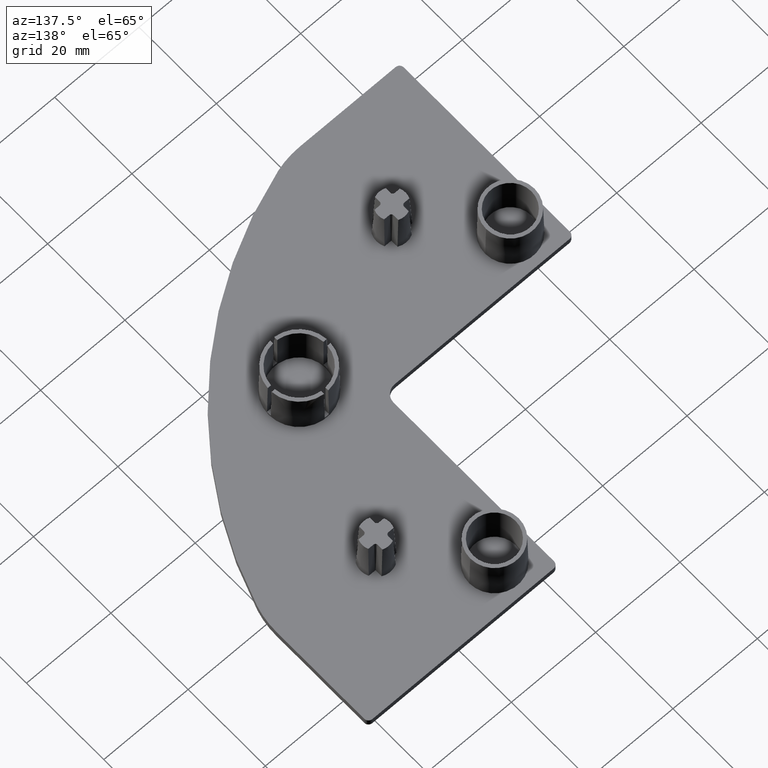
[diagram: clean part render]
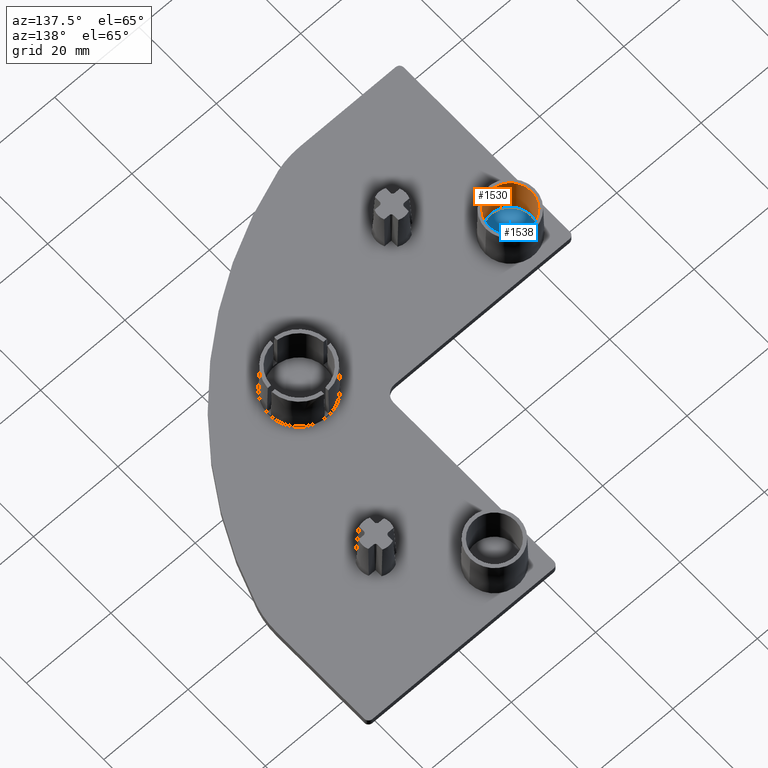
[diagram: same view with the hole feature highlighted: cylindrical wall and planar end face, labeled with their STEP entity ids]
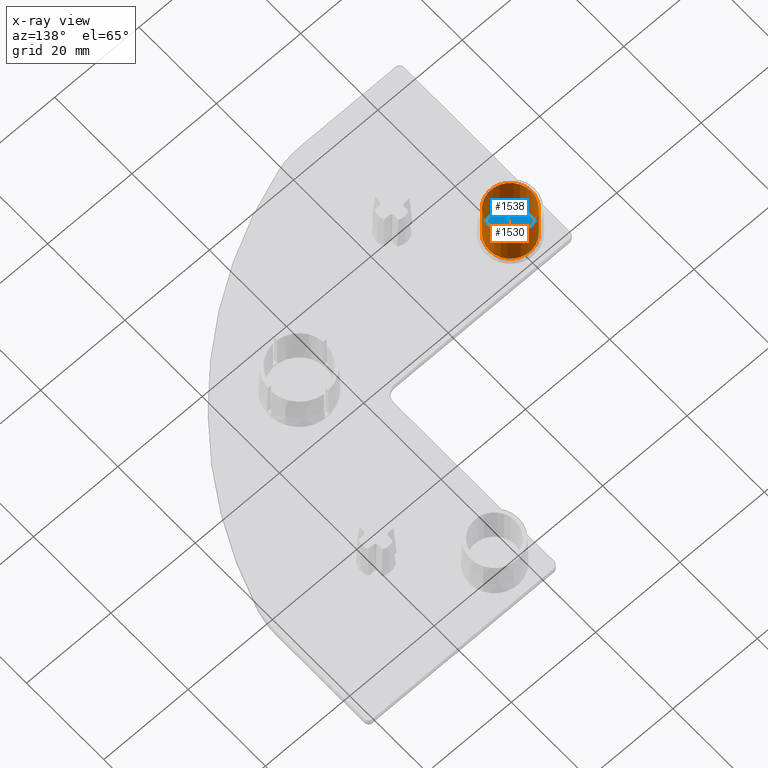
[diagram: x-ray of the same camera — body ghosted, the hole faces saturated]
A machine part, auxiliary view. The highlighted faces form one hole feature of diameter 10 mm: the cylindrical wall (entity #1530, orange) and its adjacent planar end face (entity #1538, blue) — they share a circular edge in the B-rep.
The next image is the same camera in x-ray (body ghosted, the hole faces saturated) — the bore reads through the body.
Wall:
#66=CYLINDRICAL_SURFACE('',#1696,5.);
#134=CIRCLE('',#1697,5.);
#135=CIRCLE('',#1698,5.);
#228=FACE_OUTER_BOUND('',#319,.T.);
#319=EDGE_LOOP('',(#1241,#1242,#1243,#1244));
#447=LINE('',#2606,#565);
#565=VECTOR('',#2073,5.);
#701=VERTEX_POINT('',#2603);
#702=VERTEX_POINT('',#2605);
#897=EDGE_CURVE('',#701,#701,#134,.T.);
#898=EDGE_CURVE('',#701,#702,#447,.T.);
#899=EDGE_CURVE('',#702,#702,#135,.T.);
#1241=ORIENTED_EDGE('',*,*,#897,.F.);
#1242=ORIENTED_EDGE('',*,*,#898,.T.);
#1243=ORIENTED_EDGE('',*,*,#899,.F.);
#1244=ORIENTED_EDGE('',*,*,#898,.F.);
#1530=ADVANCED_FACE('',(#228),#66,.F.);
#1696=AXIS2_PLACEMENT_3D('',#2602,#2069,#2070);
#1697=AXIS2_PLACEMENT_3D('',#2604,#2071,#2072);
#1698=AXIS2_PLACEMENT_3D('',#2607,#2074,#2075);
#2069=DIRECTION('center_axis',(0.,0.,1.));
#2070=DIRECTION('ref_axis',(-1.,0.,0.));
#2071=DIRECTION('center_axis',(0.,0.,1.));
#2072=DIRECTION('ref_axis',(-1.,0.,0.));
#2073=DIRECTION('',(0.,0.,1.));
#2074=DIRECTION('center_axis',(0.,0.,-1.));
#2075=DIRECTION('ref_axis',(-1.,0.,0.));
#2602=CARTESIAN_POINT('Origin',(-59.65,14.65,0.));
#2603=CARTESIAN_POINT('',(-54.65,14.65,0.));
#2604=CARTESIAN_POINT('Origin',(-59.65,14.65,0.));
#2605=CARTESIAN_POINT('',(-54.65,14.65,10.));
#2606=CARTESIAN_POINT('',(-54.65,14.65,0.));
#2607=CARTESIAN_POINT('Origin',(-59.65,14.65,10.));
End face:
#134=CIRCLE('',#1697,5.);
#236=FACE_OUTER_BOUND('',#334,.T.);
#334=EDGE_LOOP('',(#1311));
#701=VERTEX_POINT('',#2603);
#897=EDGE_CURVE('',#701,#701,#134,.T.);
#1311=ORIENTED_EDGE('',*,*,#897,.T.);
#1469=PLANE('',#1720);
#1538=ADVANCED_FACE('',(#236),#1469,.T.);
#1697=AXIS2_PLACEMENT_3D('',#2604,#2071,#2072);
#1720=AXIS2_PLACEMENT_3D('',#2658,#2127,#2128);
#2071=DIRECTION('center_axis',(0.,0.,1.));
#2072=DIRECTION('ref_axis',(-1.,0.,0.));
#2127=DIRECTION('center_axis',(0.,0.,1.));
#2128=DIRECTION('ref_axis',(1.,0.,0.));
#2603=CARTESIAN_POINT('',(-54.65,14.65,0.));
#2604=CARTESIAN_POINT('Origin',(-59.65,14.65,0.));
#2658=CARTESIAN_POINT('Origin',(-23.583519869159,23.583519869159,0.));